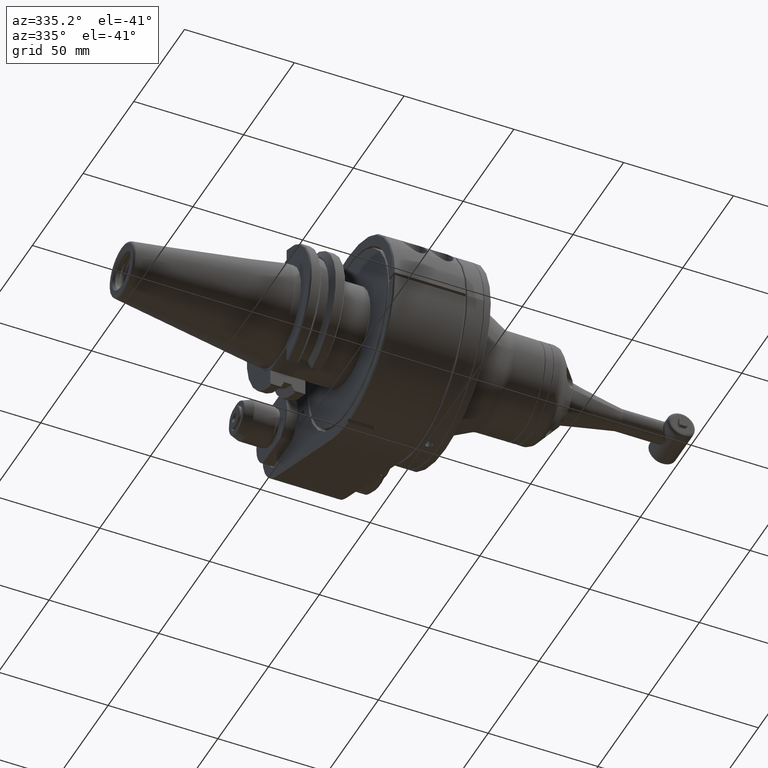
[diagram: clean part render]
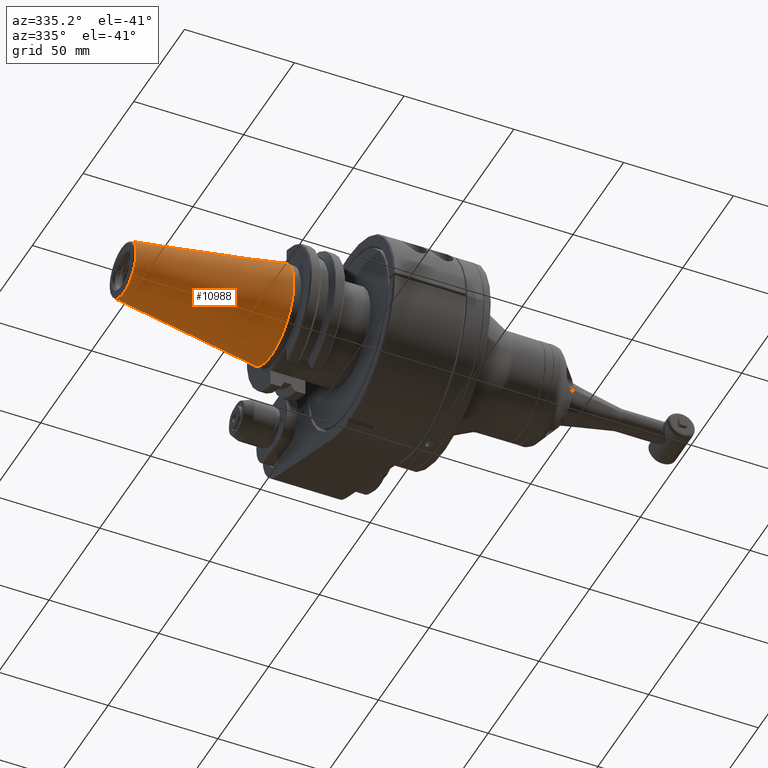
[diagram: same view with one face highlighted and labeled with its STEP entity id]
A machine part, auxiliary view. The second image highlights one B-rep face of the part: STEP entity #10988.
In plain terms, the highlighted conical surface has half-angle 8.3 deg.
Its self-contained STEP definition (entity closure, byte-faithful):
#428=CONICAL_SURFACE('',#12081,17.31065452764,0.144862327915529);
#859=CIRCLE('',#12079,22.225);
#860=CIRCLE('',#12080,22.225);
#861=CIRCLE('',#12082,12.39630905528);
#862=CIRCLE('',#12083,12.39630905528);
#1703=FACE_OUTER_BOUND('',#2380,.T.);
#2380=EDGE_LOOP('',(#9274,#9275,#9276,#9277,#9278,#9279));
#3320=LINE('',#19193,#4157);
#4157=VECTOR('',#14789,17.31065452764);
#5071=VERTEX_POINT('',#19186);
#5072=VERTEX_POINT('',#19187);
#5073=VERTEX_POINT('',#19192);
#5074=VERTEX_POINT('',#19194);
#6536=EDGE_CURVE('',#5071,#5072,#859,.T.);
#6538=EDGE_CURVE('',#5072,#5071,#860,.T.);
#6539=EDGE_CURVE('',#5071,#5073,#3320,.T.);
#6540=EDGE_CURVE('',#5073,#5074,#861,.T.);
#6541=EDGE_CURVE('',#5074,#5073,#862,.T.);
#9274=ORIENTED_EDGE('',*,*,#6536,.F.);
#9275=ORIENTED_EDGE('',*,*,#6539,.T.);
#9276=ORIENTED_EDGE('',*,*,#6540,.T.);
#9277=ORIENTED_EDGE('',*,*,#6541,.T.);
#9278=ORIENTED_EDGE('',*,*,#6539,.F.);
#9279=ORIENTED_EDGE('',*,*,#6538,.F.);
#10988=ADVANCED_FACE('',(#1703),#428,.T.);
#12079=AXIS2_PLACEMENT_3D('',#19188,#14782,#14783);
#12080=AXIS2_PLACEMENT_3D('',#19190,#14785,#14786);
#12081=AXIS2_PLACEMENT_3D('',#19191,#14787,#14788);
#12082=AXIS2_PLACEMENT_3D('',#19195,#14790,#14791);
#12083=AXIS2_PLACEMENT_3D('',#19196,#14792,#14793);
#14782=DIRECTION('center_axis',(0.,-1.,0.));
#14783=DIRECTION('ref_axis',(-1.,0.,0.));
#14785=DIRECTION('center_axis',(0.,-1.,0.));
#14786=DIRECTION('ref_axis',(-1.,0.,0.));
#14787=DIRECTION('center_axis',(0.,-1.,0.));
#14788=DIRECTION('ref_axis',(-1.,0.,0.));
#14789=DIRECTION('',(-0.144356201000973,0.989525789068969,-1.76785359492914E-17));
#14790=DIRECTION('center_axis',(0.,-1.,0.));
#14791=DIRECTION('ref_axis',(1.,0.,2.949518067144E-12));
#14792=DIRECTION('center_axis',(0.,-1.,0.));
#14793=DIRECTION('ref_axis',(1.,0.,2.949518067144E-12));
#19186=CARTESIAN_POINT('',(22.225,67.9999999999999,3.277788040989E-11));
#19187=CARTESIAN_POINT('',(-22.225,67.9999999999998,2.72177751110499E-15));
#19188=CARTESIAN_POINT('Origin',(0.,67.9999999999998,0.));
#19190=CARTESIAN_POINT('Origin',(0.,67.9999999999998,0.));
#19191=CARTESIAN_POINT('Origin',(0.,101.6866137206,0.));
#19192=CARTESIAN_POINT('',(12.3963090552815,135.3732274412,1.51811002057918E-15));
#19193=CARTESIAN_POINT('',(17.31065452764,101.6866137206,2.119943765842E-15));
#19194=CARTESIAN_POINT('',(12.39538385673,135.3732274412,0.1514504484024));
#19195=CARTESIAN_POINT('Origin',(0.,135.3732274412,0.));
#19196=CARTESIAN_POINT('Origin',(0.,135.3732274412,0.));